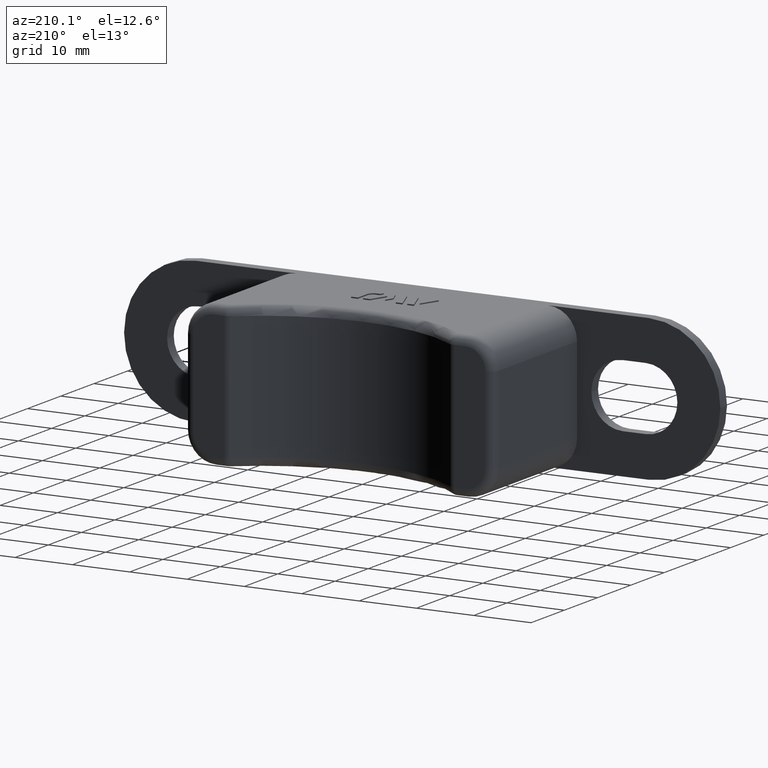
[diagram: clean part render]
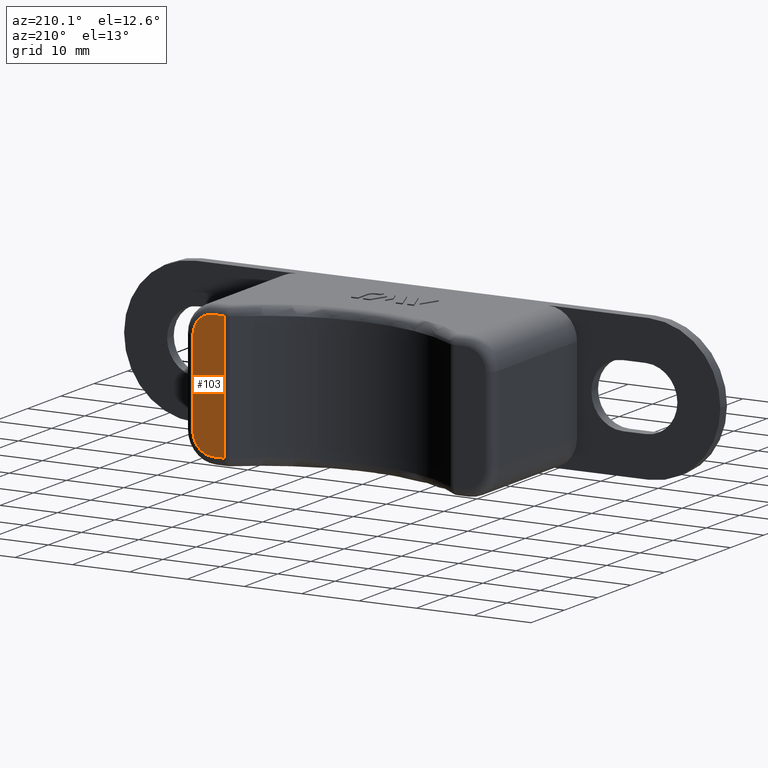
[diagram: same view with one face highlighted and labeled with its STEP entity id]
A machine part, auxiliary view. The second image highlights one B-rep face of the part: STEP entity #103.
In plain terms, the highlighted planar face has unit normal (0, 1, 0).
Its self-contained STEP definition (entity closure, byte-faithful):
#103 = ADVANCED_FACE( '', ( #526 ), #527, .T. );
#526 = FACE_OUTER_BOUND( '', #1266, .T. );
#527 = PLANE( '', #1267 );
#1266 = EDGE_LOOP( '', ( #2393, #2394, #2395, #2396, #2397, #2398 ) );
#1267 = AXIS2_PLACEMENT_3D( '', #2399, #2400, #2401 );
#2393 = ORIENTED_EDGE( '', *, *, #5062, .T. );
#2394 = ORIENTED_EDGE( '', *, *, #5063, .T. );
#2395 = ORIENTED_EDGE( '', *, *, #5064, .T. );
#2396 = ORIENTED_EDGE( '', *, *, #5065, .T. );
#2397 = ORIENTED_EDGE( '', *, *, #5066, .T. );
#2398 = ORIENTED_EDGE( '', *, *, #5067, .T. );
#2399 = CARTESIAN_POINT( '', ( 27.0000000000000, 27.0000000000000, -12.5000000000000 ) );
#2400 = DIRECTION( '', ( 0.000000000000000, 1.00000000000000, 0.000000000000000 ) );
#2401 = DIRECTION( '', ( 1.00000000000000, 0.000000000000000, 0.000000000000000 ) );
#5062 = EDGE_CURVE( '', #6278, #6279, #6280, .T. );
#5063 = EDGE_CURVE( '', #6279, #6281, #6282, .T. );
#5064 = EDGE_CURVE( '', #6281, #6283, #6284, .F. );
#5065 = EDGE_CURVE( '', #6283, #6285, #6286, .T. );
#5066 = EDGE_CURVE( '', #6285, #6287, #6288, .F. );
#5067 = EDGE_CURVE( '', #6287, #6278, #6289, .T. );
#6278 = VERTEX_POINT( '', #8053 );
#6279 = VERTEX_POINT( '', #8054 );
#6280 = LINE( '', #8055, #8056 );
#6281 = VERTEX_POINT( '', #8057 );
#6282 = LINE( '', #8058, #8059 );
#6283 = VERTEX_POINT( '', #8060 );
#6284 = LINE( '', #8061, #8062 );
#6285 = VERTEX_POINT( '', #8063 );
#6286 = CIRCLE( '', #8064, 3.50000000000000 );
#6287 = VERTEX_POINT( '', #8065 );
#6288 = LINE( '', #8066, #8067 );
#6289 = CIRCLE( '', #8068, 3.50000000000000 );
#8053 = CARTESIAN_POINT( '', ( 22.0000000000000, 27.0000000000000, -11.0000000000000 ) );
#8054 = CARTESIAN_POINT( '', ( 19.9749843554382, 27.0000000000000, -11.0000000000000 ) );
#8055 = CARTESIAN_POINT( '', ( 27.0000000000000, 27.0000000000000, -11.0000000000000 ) );
#8056 = VECTOR( '', #9654, 1000.00000000000 );
#8057 = CARTESIAN_POINT( '', ( 19.9749843554382, 27.0000000000000, 11.0000000000000 ) );
#8058 = CARTESIAN_POINT( '', ( 19.9749843554382, 27.0000000000000, -12.5000000000000 ) );
#8059 = VECTOR( '', #9655, 1000.00000000000 );
#8060 = CARTESIAN_POINT( '', ( 22.0000000000000, 27.0000000000000, 11.0000000000000 ) );
#8061 = CARTESIAN_POINT( '', ( 22.0000000000000, 27.0000000000000, 11.0000000000000 ) );
#8062 = VECTOR( '', #9656, 1000.00000000000 );
#8063 = CARTESIAN_POINT( '', ( 25.5000000000000, 27.0000000000000, 7.50000000000000 ) );
#8064 = AXIS2_PLACEMENT_3D( '', #9657, #9658, #9659 );
#8065 = CARTESIAN_POINT( '', ( 25.5000000000000, 27.0000000000000, -7.50000000000000 ) );
#8066 = CARTESIAN_POINT( '', ( 25.5000000000000, 27.0000000000000, -12.5000000000000 ) );
#8067 = VECTOR( '', #9660, 1000.00000000000 );
#8068 = AXIS2_PLACEMENT_3D( '', #9661, #9662, #9663 );
#9654 = DIRECTION( '', ( -1.00000000000000, 0.000000000000000, 0.000000000000000 ) );
#9655 = DIRECTION( '', ( 0.000000000000000, 0.000000000000000, 1.00000000000000 ) );
#9656 = DIRECTION( '', ( -1.00000000000000, 0.000000000000000, 0.000000000000000 ) );
#9657 = CARTESIAN_POINT( '', ( 22.0000000000000, 27.0000000000000, 7.50000000000000 ) );
#9658 = DIRECTION( '', ( 0.000000000000000, 1.00000000000000, 0.000000000000000 ) );
#9659 = DIRECTION( '', ( 0.000000000000000, 0.000000000000000, 1.00000000000000 ) );
#9660 = DIRECTION( '', ( 0.000000000000000, 0.000000000000000, 1.00000000000000 ) );
#9661 = CARTESIAN_POINT( '', ( 22.0000000000000, 27.0000000000000, -7.50000000000000 ) );
#9662 = DIRECTION( '', ( 0.000000000000000, 1.00000000000000, 0.000000000000000 ) );
#9663 = DIRECTION( '', ( 0.000000000000000, 0.000000000000000, 1.00000000000000 ) );